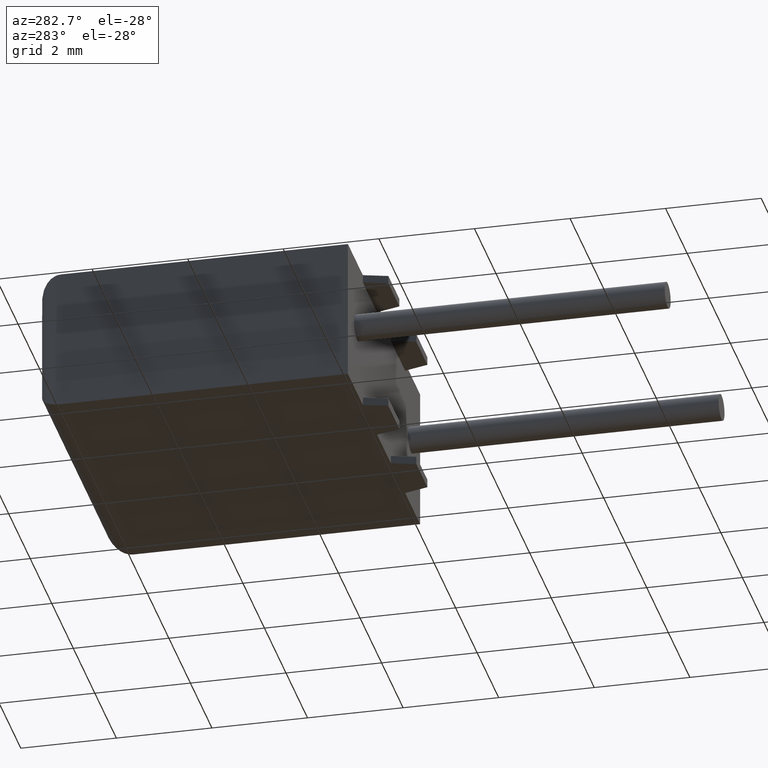
[diagram: clean part render]
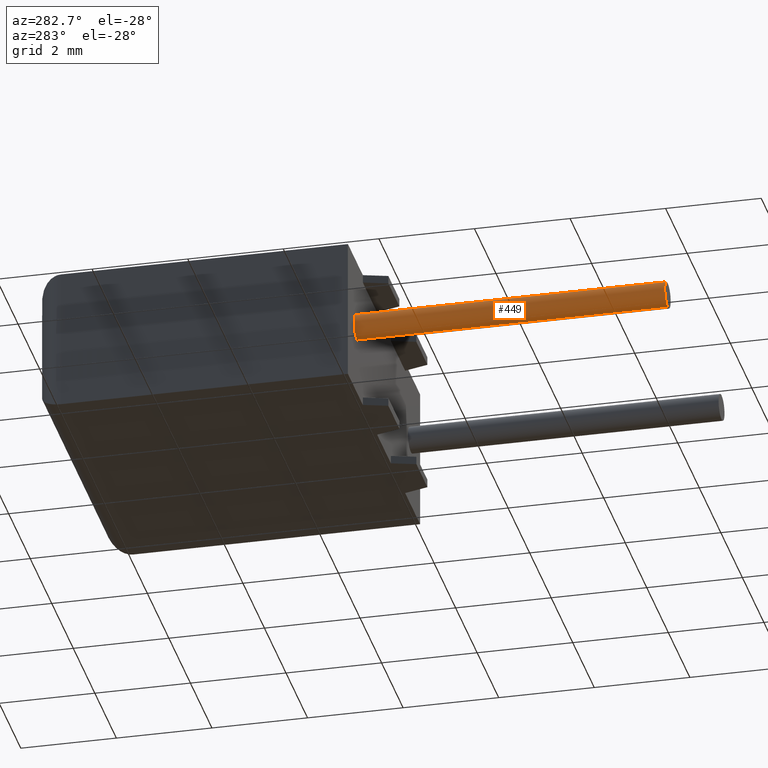
[diagram: same view with one face highlighted and labeled with its STEP entity id]
A machine part, auxiliary view. The second image highlights one B-rep face of the part: STEP entity #449.
In plain terms, the highlighted cylindrical surface (edge-blend (fillet) strip) has radius 0.275 mm, axis along (-0, 1, -0).
Its self-contained STEP definition (entity closure, byte-faithful):
#41 = CARTESIAN_POINT ( 'NONE',  ( 0.8499999999999996447, 0.000000000000000000, 1.499999999999999334 ) ) ;
#135 = EDGE_CURVE ( 'NONE', #1020, #281, #1621, .T. ) ;
#179 = DIRECTION ( 'NONE',  ( -0.000000000000000000, 1.000000000000000000, -0.000000000000000000 ) ) ;
#199 = AXIS2_PLACEMENT_3D ( 'NONE', #2416, #2647, #1120 ) ;
#200 = FACE_OUTER_BOUND ( 'NONE', #2697, .T. ) ;
#281 = VERTEX_POINT ( 'NONE', #2485 ) ;
#449 = ADVANCED_FACE ( 'NONE', ( #200 ), #1423, .T. ) ;
#480 = VERTEX_POINT ( 'NONE', #910 ) ;
#493 = LINE ( 'NONE', #1969, #3192 ) ;
#659 = LINE ( 'NONE', #2636, #3190 ) ;
#852 = DIRECTION ( 'NONE',  ( 0.000000000000000000, 0.000000000000000000, 1.000000000000000000 ) ) ;
#910 = CARTESIAN_POINT ( 'NONE',  ( 0.8499999999999996447, 0.000000000000000000, 1.224999999999999201 ) ) ;
#934 = DIRECTION ( 'NONE',  ( -0.000000000000000000, 1.000000000000000000, -0.000000000000000000 ) ) ;
#1020 = VERTEX_POINT ( 'NONE', #1806 ) ;
#1120 = DIRECTION ( 'NONE',  ( 0.000000000000000000, 0.000000000000000000, -1.000000000000000000 ) ) ;
#1356 = EDGE_CURVE ( 'NONE', #2164, #480, #1934, .T. ) ;
#1423 = CYLINDRICAL_SURFACE ( 'NONE', #2916, 0.2750000000000000777 ) ;
#1621 = CIRCLE ( 'NONE', #199, 0.2750000000000000777 ) ;
#1734 = ORIENTED_EDGE ( 'NONE', *, *, #2195, .F. ) ;
#1806 = CARTESIAN_POINT ( 'NONE',  ( 0.8499999999999996447, -6.500000000000000000, 1.774999999999999467 ) ) ;
#1815 = DIRECTION ( 'NONE',  ( -0.000000000000000000, -1.000000000000000000, -0.000000000000000000 ) ) ;
#1934 = CIRCLE ( 'NONE', #3023, 0.2750000000000000777 ) ;
#1969 = CARTESIAN_POINT ( 'NONE',  ( 0.8499999999999996447, -6.500000000000000000, 1.224999999999999201 ) ) ;
#2004 = CARTESIAN_POINT ( 'NONE',  ( 0.8499999999999996447, 0.000000000000000000, 1.774999999999999467 ) ) ;
#2035 = EDGE_CURVE ( 'NONE', #1020, #2164, #659, .T. ) ;
#2164 = VERTEX_POINT ( 'NONE', #2004 ) ;
#2195 = EDGE_CURVE ( 'NONE', #281, #480, #493, .T. ) ;
#2223 = ORIENTED_EDGE ( 'NONE', *, *, #2035, .T. ) ;
#2276 = DIRECTION ( 'NONE',  ( -0.000000000000000000, 1.000000000000000000, -0.000000000000000000 ) ) ;
#2416 = CARTESIAN_POINT ( 'NONE',  ( 0.8499999999999996447, -6.500000000000000000, 1.499999999999999334 ) ) ;
#2425 = CARTESIAN_POINT ( 'NONE',  ( 0.8499999999999996447, -6.500000000000000000, 1.499999999999999334 ) ) ;
#2485 = CARTESIAN_POINT ( 'NONE',  ( 0.8499999999999996447, -6.500000000000000000, 1.224999999999999201 ) ) ;
#2636 = CARTESIAN_POINT ( 'NONE',  ( 0.8499999999999996447, -6.500000000000000000, 1.774999999999999467 ) ) ;
#2647 = DIRECTION ( 'NONE',  ( 0.000000000000000000, -1.000000000000000000, 0.000000000000000000 ) ) ;
#2697 = EDGE_LOOP ( 'NONE', ( #1734, #2817, #2223, #2742 ) ) ;
#2742 = ORIENTED_EDGE ( 'NONE', *, *, #1356, .T. ) ;
#2817 = ORIENTED_EDGE ( 'NONE', *, *, #135, .F. ) ;
#2916 = AXIS2_PLACEMENT_3D ( 'NONE', #2425, #179, #3181 ) ;
#3023 = AXIS2_PLACEMENT_3D ( 'NONE', #41, #1815, #852 ) ;
#3181 = DIRECTION ( 'NONE',  ( 0.000000000000000000, 0.000000000000000000, 1.000000000000000000 ) ) ;
#3190 = VECTOR ( 'NONE', #934, 1000.000000000000000 ) ;
#3192 = VECTOR ( 'NONE', #2276, 1000.000000000000000 ) ;